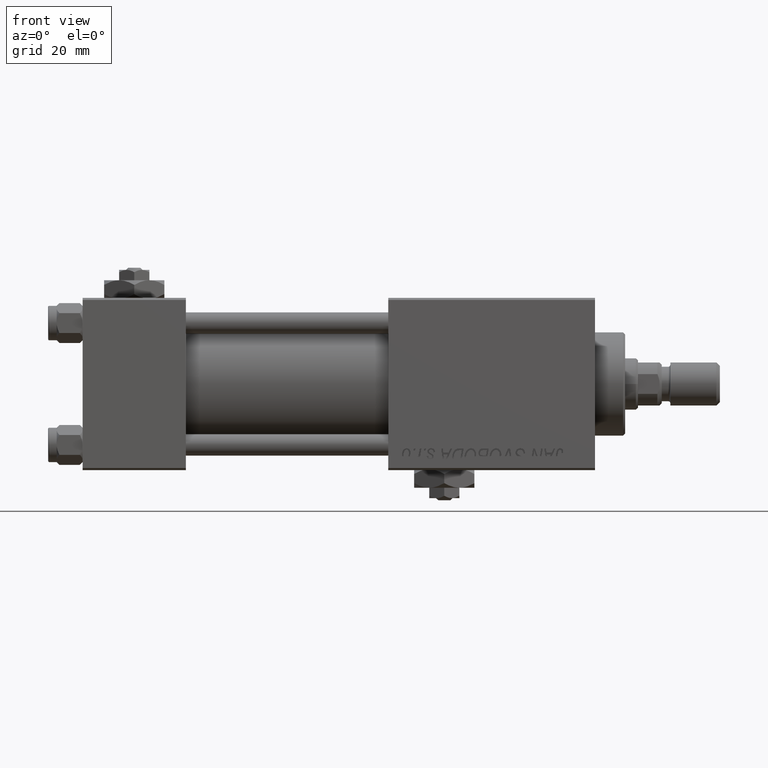
[diagram: clean part render]
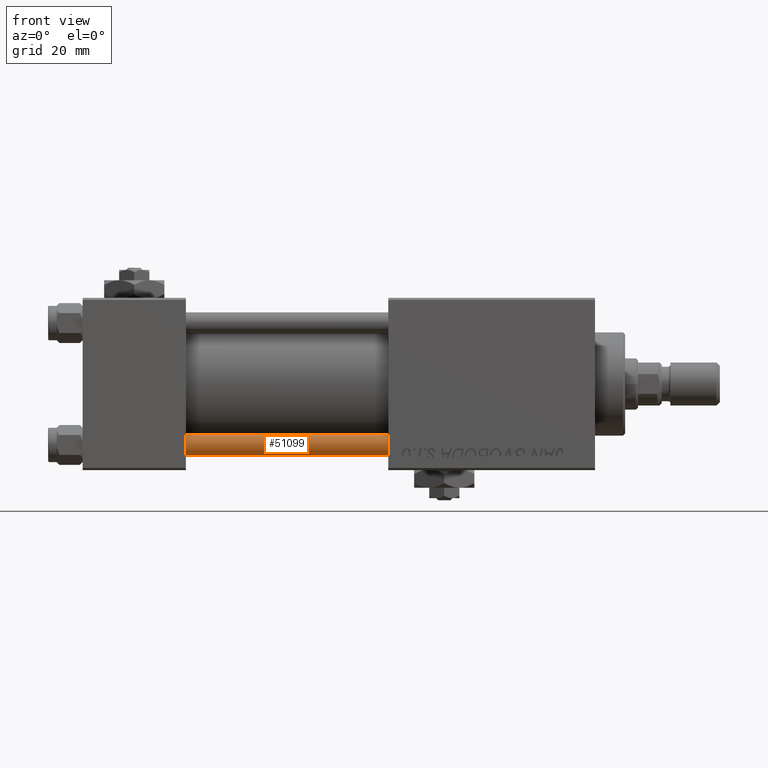
[diagram: same view with one face highlighted and labeled with its STEP entity id]
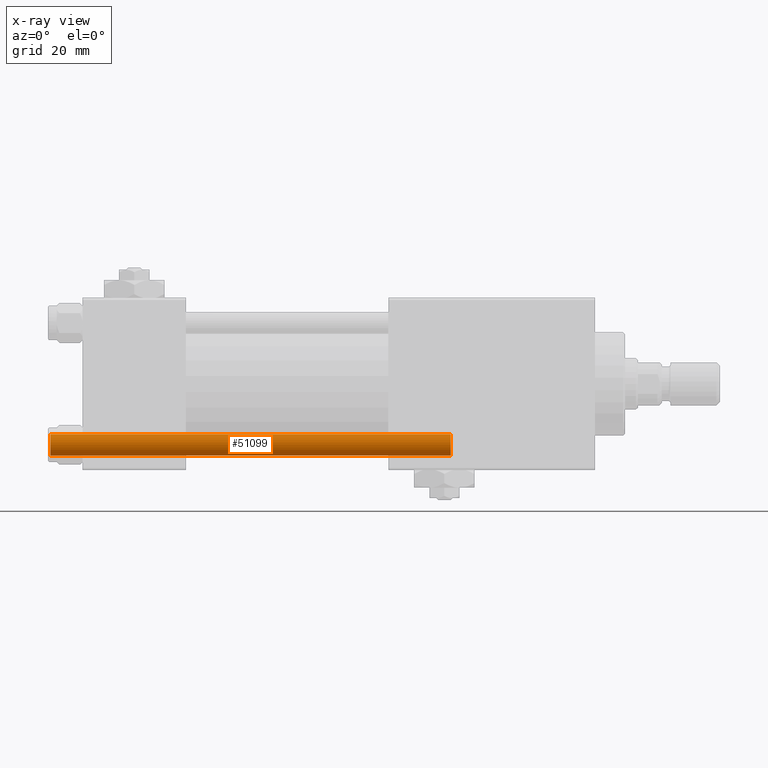
[diagram: x-ray of the same camera — body ghosted, the highlighted face saturated]
A machine part, front view. The second image highlights one B-rep face of the part: STEP entity #51099.
The next image is the same camera in x-ray: the body ghosted, the highlighted face saturated — about 0% of this face is hidden behind the body in this view.
In plain terms, the highlighted cylindrical surface (edge-blend (fillet) strip) has radius 2.5 mm, axis along (-1, -0, -0).
Its self-contained STEP definition (entity closure, byte-faithful):
#1310 = DIRECTION ( 'NONE',  ( -0.000000000000000000, -0.000000000000000000, -1.000000000000000000 ) ) ;
#3563 = CARTESIAN_POINT ( 'NONE',  ( -2.500000000000000000, 0.000000000000000000, 0.5000000000000004441 ) ) ;
#4514 = LINE ( 'NONE', #45996, #49244 ) ;
#5830 = AXIS2_PLACEMENT_3D ( 'NONE', #7626, #40079, #12142 ) ;
#7096 = CARTESIAN_POINT ( 'NONE',  ( 2.500000000000000000, 3.061616997868383141E-16, 93.50000000000001421 ) ) ;
#7447 = VECTOR ( 'NONE', #25239, 1000.000000000000000 ) ;
#7626 = CARTESIAN_POINT ( 'NONE',  ( 0.000000000000000000, 0.000000000000000000, 0.5000000000000004441 ) ) ;
#12142 = DIRECTION ( 'NONE',  ( 1.000000000000000000, 0.000000000000000000, 0.000000000000000000 ) ) ;
#12548 = CIRCLE ( 'NONE', #16785, 2.500000000000000000 ) ;
#13675 = ORIENTED_EDGE ( 'NONE', *, *, #49614, .F. ) ;
#14451 = CARTESIAN_POINT ( 'NONE',  ( 0.000000000000000000, 0.000000000000000000, 94.00000000000000000 ) ) ;
#15722 = EDGE_CURVE ( 'NONE', #22363, #45297, #22772, .T. ) ;
#15802 = EDGE_LOOP ( 'NONE', ( #31852, #18586, #50641, #13675 ) ) ;
#16785 = AXIS2_PLACEMENT_3D ( 'NONE', #52051, #23831, #23038 ) ;
#18586 = ORIENTED_EDGE ( 'NONE', *, *, #22087, .T. ) ;
#21505 = LINE ( 'NONE', #38014, #7447 ) ;
#21912 = DIRECTION ( 'NONE',  ( -1.000000000000000000, 0.000000000000000000, 0.000000000000000000 ) ) ;
#22087 = EDGE_CURVE ( 'NONE', #36554, #22363, #4514, .T. ) ;
#22363 = VERTEX_POINT ( 'NONE', #37431 ) ;
#22772 = CIRCLE ( 'NONE', #5830, 2.500000000000000000 ) ;
#23038 = DIRECTION ( 'NONE',  ( 1.000000000000000000, 0.000000000000000000, 0.000000000000000000 ) ) ;
#23831 = DIRECTION ( 'NONE',  ( 0.000000000000000000, 0.000000000000000000, -1.000000000000000000 ) ) ;
#23938 = CARTESIAN_POINT ( 'NONE',  ( -2.500000000000000000, 0.000000000000000000, 93.50000000000001421 ) ) ;
#25239 = DIRECTION ( 'NONE',  ( -0.000000000000000000, -0.000000000000000000, -1.000000000000000000 ) ) ;
#30925 = DIRECTION ( 'NONE',  ( -0.000000000000000000, -0.000000000000000000, -1.000000000000000000 ) ) ;
#31852 = ORIENTED_EDGE ( 'NONE', *, *, #49283, .T. ) ;
#36554 = VERTEX_POINT ( 'NONE', #7096 ) ;
#37431 = CARTESIAN_POINT ( 'NONE',  ( 2.500000000000000000, 3.061616997868383141E-16, 0.5000000000000004441 ) ) ;
#38014 = CARTESIAN_POINT ( 'NONE',  ( -2.500000000000000000, 0.000000000000000000, 94.00000000000000000 ) ) ;
#39199 = CYLINDRICAL_SURFACE ( 'NONE', #48161, 2.500000000000000000 ) ;
#39934 = VERTEX_POINT ( 'NONE', #23938 ) ;
#40079 = DIRECTION ( 'NONE',  ( -0.000000000000000000, -0.000000000000000000, 1.000000000000000000 ) ) ;
#45297 = VERTEX_POINT ( 'NONE', #3563 ) ;
#45996 = CARTESIAN_POINT ( 'NONE',  ( 2.500000000000000000, 3.061616997868383141E-16, 94.00000000000000000 ) ) ;
#48161 = AXIS2_PLACEMENT_3D ( 'NONE', #14451, #30925, #21912 ) ;
#49244 = VECTOR ( 'NONE', #1310, 1000.000000000000000 ) ;
#49283 = EDGE_CURVE ( 'NONE', #39934, #36554, #12548, .T. ) ;
#49614 = EDGE_CURVE ( 'NONE', #39934, #45297, #21505, .T. ) ;
#50641 = ORIENTED_EDGE ( 'NONE', *, *, #15722, .T. ) ;
#50915 = FACE_OUTER_BOUND ( 'NONE', #15802, .T. ) ;
#51099 = ADVANCED_FACE ( 'NONE', ( #50915 ), #39199, .T. ) ;
#52051 = CARTESIAN_POINT ( 'NONE',  ( 0.000000000000000000, 0.000000000000000000, 93.50000000000001421 ) ) ;